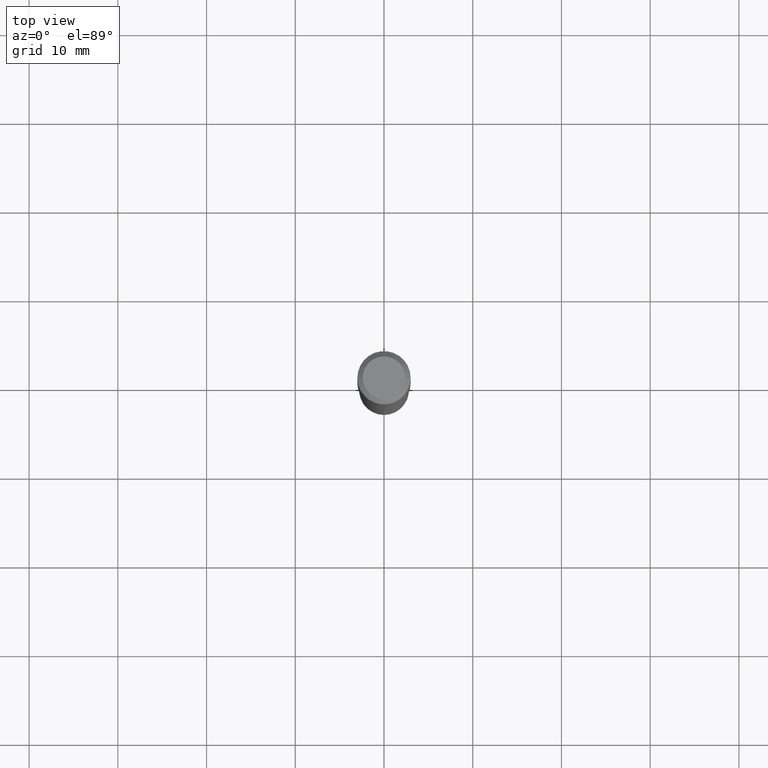
[diagram: clean part render]
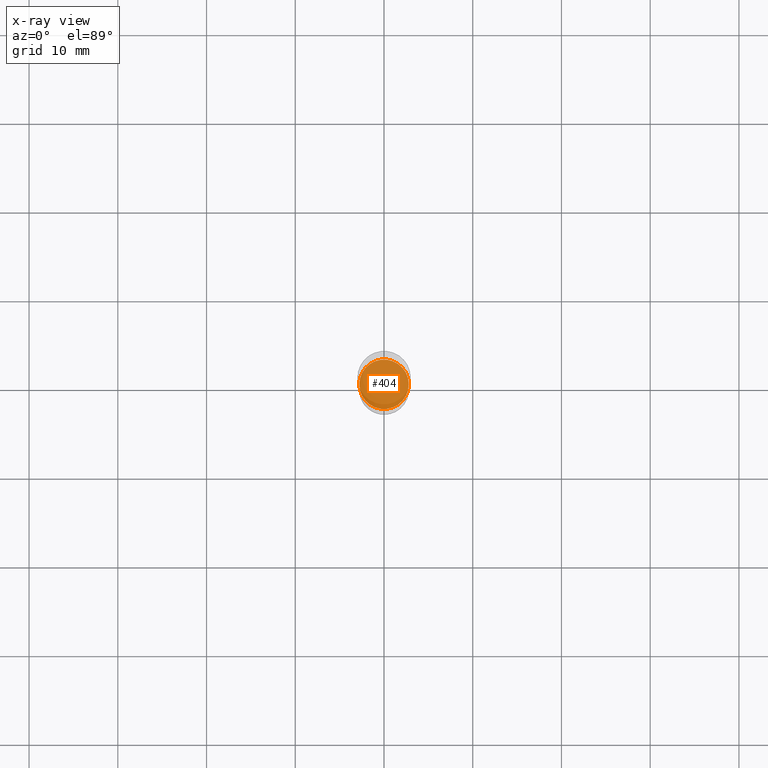
[diagram: x-ray — body ghosted, one internal face saturated and labeled with its STEP entity id]
A machine part, top view, then the same camera in x-ray: the body is ghosted and one INTERNAL B-rep face — a face not visible from any outside direction — is saturated and labeled: STEP entity #404.
In plain terms, the highlighted planar face has unit normal (-0, 0, 1).
Its self-contained STEP definition (entity closure, byte-faithful):
#24 = CIRCLE ( 'NONE', #274, 0.1097500000000000003 ) ;
#58 = DIRECTION ( 'NONE',  ( -2.438088387897960049E-29, 3.491481338843145188E-15, 1.000000000000000000 ) ) ;
#64 = DIRECTION ( 'NONE',  ( 1.000000000000000000, -6.982962677686264344E-15, 0.000000000000000000 ) ) ;
#69 = EDGE_CURVE ( 'NONE', #270, #90, #478, .T. ) ;
#82 = EDGE_CURVE ( 'NONE', #90, #270, #24, .T. ) ;
#90 = VERTEX_POINT ( 'NONE', #477 ) ;
#101 = DIRECTION ( 'NONE',  ( -2.445468806185136597E-29, 3.491481338843145583E-15, 1.000000000000000000 ) ) ;
#104 = CARTESIAN_POINT ( 'NONE',  ( 4.197647205816787040E-29, -5.993127718124259988E-15, -1.716500000000000137 ) ) ;
#107 = AXIS2_PLACEMENT_3D ( 'NONE', #211, #101, #175 ) ;
#139 = DIRECTION ( 'NONE',  ( -2.445468806185136597E-29, 3.491481338843145583E-15, 1.000000000000000000 ) ) ;
#152 = CARTESIAN_POINT ( 'NONE',  ( -0.1097500000000000003, -5.210657838453439520E-15, -1.716500000000000137 ) ) ;
#163 = PLANE ( 'NONE',  #181 ) ;
#175 = DIRECTION ( 'NONE',  ( 1.000000000000000000, -6.982962677686264344E-15, 0.000000000000000000 ) ) ;
#181 = AXIS2_PLACEMENT_3D ( 'NONE', #200, #58, #462 ) ;
#200 = CARTESIAN_POINT ( 'NONE',  ( 4.197647205816787040E-29, -5.993127718124259988E-15, -1.716500000000000137 ) ) ;
#211 = CARTESIAN_POINT ( 'NONE',  ( 4.197647205816787040E-29, -5.993127718124259988E-15, -1.716500000000000137 ) ) ;
#270 = VERTEX_POINT ( 'NONE', #152 ) ;
#274 = AXIS2_PLACEMENT_3D ( 'NONE', #104, #139, #64 ) ;
#314 = EDGE_LOOP ( 'NONE', ( #397, #389 ) ) ;
#389 = ORIENTED_EDGE ( 'NONE', *, *, #69, .F. ) ;
#397 = ORIENTED_EDGE ( 'NONE', *, *, #82, .F. ) ;
#404 = ADVANCED_FACE ( 'NONE', ( #425 ), #163, .F. ) ;
#425 = FACE_OUTER_BOUND ( 'NONE', #314, .T. ) ;
#462 = DIRECTION ( 'NONE',  ( 1.000000000000000000, -6.982962677686265922E-15, 4.876176775795935793E-29 ) ) ;
#477 = CARTESIAN_POINT ( 'NONE',  ( 0.1097500000000000003, -6.759507872000327664E-15, -1.716500000000000137 ) ) ;
#478 = CIRCLE ( 'NONE', #107, 0.1097500000000000003 ) ;